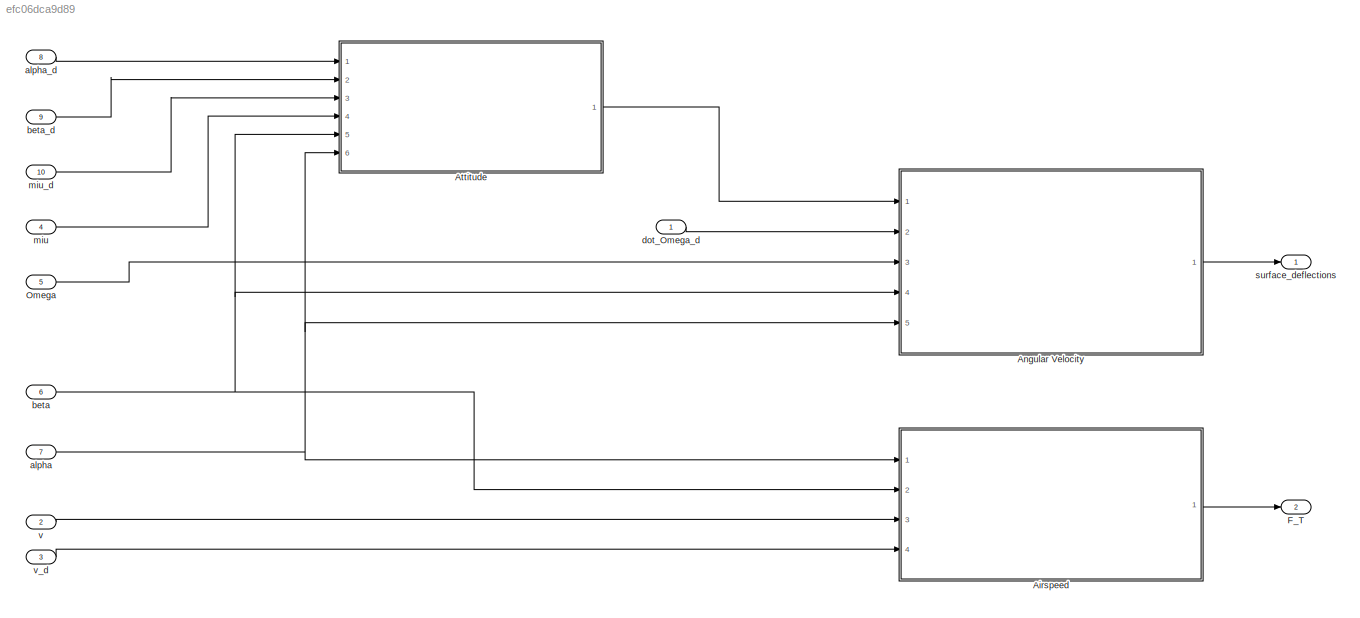
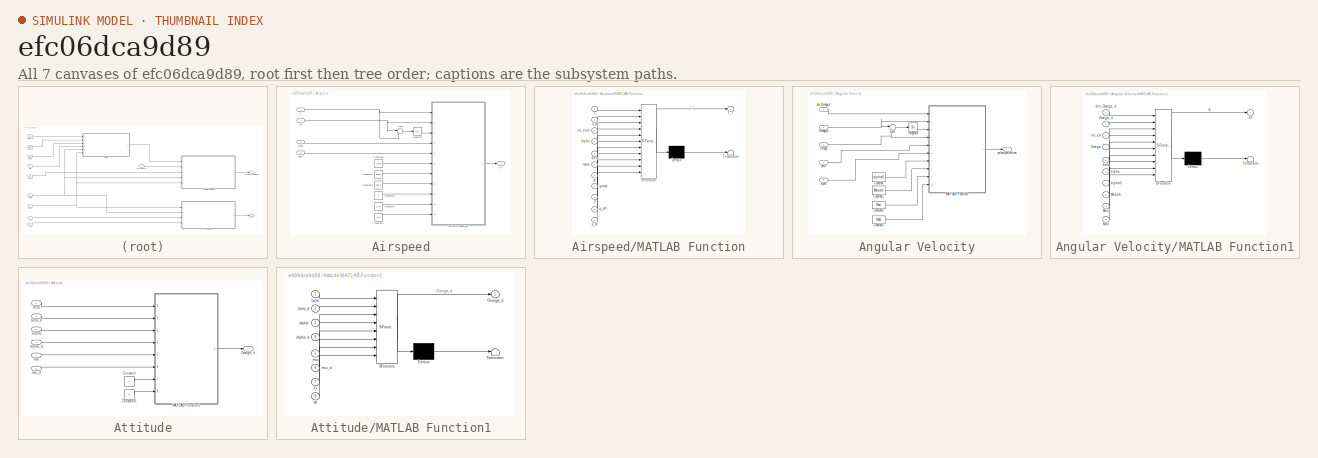
[diagram: thumbnail index - all 7 canvases of the model, root first then tree order]
MODEL slx_efc06dca9d89
KIND model
CONFIG AbsTol = auto
CONFIG EnableMultiTasking = off
CONFIG FixedStep = auto
CONFIG MaxStep = auto
CONFIG MinStep = auto
CONFIG RelTol = 1e-3
CONFIG SampleTimeConstraint = Unconstrained
CONFIG SolverName = VariableStepAuto
CONFIG StartTime = 0.0
CONFIG StopTime = 10.0
BLOCK [SubSystem] Airspeed
  Ports = [4, 1]
  RequestExecContextInheritance = off
BLOCK [Constant] Airspeed/Constant2
  Value = mass
BLOCK [Constant] Airspeed/Constant3
  Value = gravity
BLOCK [Constant] Airspeed/Constant4
  Value = gama
BLOCK [Constant] Airspeed/Constant5
  Value = D
BLOCK [Constant] Airspeed/Constant6
  Value = k_VP
BLOCK [Constant] Airspeed/Constant7
  Value = k_VI
BLOCK [Outport] Airspeed/F_T 
  VectorParamsAs1DForOutWhenUnconnected = off
BLOCK [Integrator] Airspeed/Integrator
  Ports = [1, 1]
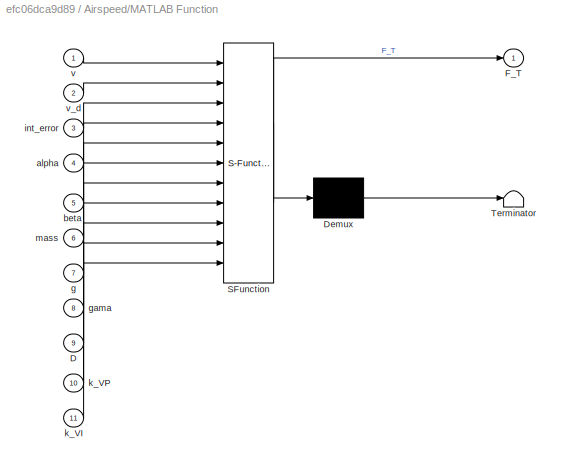
BLOCK [SubSystem] Airspeed/MATLAB Function
  ErrorFcn = Stateflow.Translate.translate
  PermitHierarchicalResolution = ExplicitOnly
  Ports = [11, 1]
  RequestExecContextInheritance = off
  SFBlockType = MATLAB Function
  TreatAsAtomicUnit = on
BLOCK [Demux] Airspeed/MATLAB Function/ Demux 
  Outputs = 1
  Ports = [1, 1]
BLOCK [S-Function] Airspeed/MATLAB Function/ SFunction 
  EnableBusSupport = off
  FunctionName = sf_sfun
  PortCounts = [11 2]
  Ports = [11, 2]
  SFcnIsStateOwnerBlock = off
  SFunctionDeploymentMode = off
  Tag = Stateflow S-Function 3
BLOCK [Terminator] Airspeed/MATLAB Function/ Terminator 
BLOCK [Inport] Airspeed/MATLAB Function/D
  Port = 9
BLOCK [Outport] Airspeed/MATLAB Function/F_T
  VectorParamsAs1DForOutWhenUnconnected = off
BLOCK [Inport] Airspeed/MATLAB Function/alpha
  Port = 4
BLOCK [Inport] Airspeed/MATLAB Function/beta
  Port = 5
BLOCK [Inport] Airspeed/MATLAB Function/g
  Port = 7
BLOCK [Inport] Airspeed/MATLAB Function/gama
  Port = 8
BLOCK [Inport] Airspeed/MATLAB Function/int_error
  Port = 3
BLOCK [Inport] Airspeed/MATLAB Function/k_VI
  Port = 11
BLOCK [Inport] Airspeed/MATLAB Function/k_VP
  Port = 10
BLOCK [Inport] Airspeed/MATLAB Function/mass
  Port = 6
BLOCK [Inport] Airspeed/MATLAB Function/v
BLOCK [Inport] Airspeed/MATLAB Function/v_d
  Port = 2
BLOCK [Sum] Airspeed/Sum
  Inputs = |-+
  Ports = [2, 1]
BLOCK [Inport] Airspeed/alpha
BLOCK [Inport] Airspeed/beta
  Port = 2
BLOCK [Inport] Airspeed/v 
  Port = 3
BLOCK [Inport] Airspeed/v_d
  Port = 4
BLOCK [SubSystem] Angular Velocity
  Ports = [5, 1]
  RequestExecContextInheritance = off
BLOCK [Constant] Angular Velocity/Constant
  Value = alpha0
BLOCK [Constant] Angular Velocity/Constant1
  Value = Maabb
BLOCK [Constant] Angular Velocity/Constant2
  Value = Moo
BLOCK [Constant] Angular Velocity/Constant3
  Value = Mdd
BLOCK [Integrator] Angular Velocity/Integrator
  Ports = [1, 1]
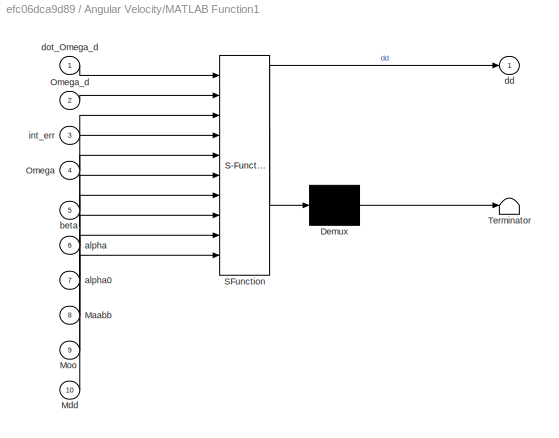
BLOCK [SubSystem] Angular Velocity/MATLAB Function1
  ErrorFcn = Stateflow.Translate.translate
  PermitHierarchicalResolution = ExplicitOnly
  Ports = [10, 1]
  RequestExecContextInheritance = off
  SFBlockType = MATLAB Function
  TreatAsAtomicUnit = on
BLOCK [Demux] Angular Velocity/MATLAB Function1/ Demux 
  Outputs = 1
  Ports = [1, 1]
BLOCK [S-Function] Angular Velocity/MATLAB Function1/ SFunction 
  EnableBusSupport = off
  FunctionName = sf_sfun
  PortCounts = [10 2]
  Ports = [10, 2]
  SFcnIsStateOwnerBlock = off
  SFunctionDeploymentMode = off
  Tag = Stateflow S-Function 1
BLOCK [Terminator] Angular Velocity/MATLAB Function1/ Terminator 
BLOCK [Inport] Angular Velocity/MATLAB Function1/Maabb
  Port = 8
BLOCK [Inport] Angular Velocity/MATLAB Function1/Mdd
  Port = 10
BLOCK [Inport] Angular Velocity/MATLAB Function1/Moo
  Port = 9
BLOCK [Inport] Angular Velocity/MATLAB Function1/Omega
  Port = 4
BLOCK [Inport] Angular Velocity/MATLAB Function1/Omega_d
  Port = 2
BLOCK [Inport] Angular Velocity/MATLAB Function1/alpha
  Port = 6
BLOCK [Inport] Angular Velocity/MATLAB Function1/alpha0
  Port = 7
BLOCK [Inport] Angular Velocity/MATLAB Function1/beta
  Port = 5
BLOCK [Outport] Angular Velocity/MATLAB Function1/dd
  VectorParamsAs1DForOutWhenUnconnected = off
BLOCK [Inport] Angular Velocity/MATLAB Function1/dot_Omega_d
BLOCK [Inport] Angular Velocity/MATLAB Function1/int_err
  Port = 3
BLOCK [Inport] Angular Velocity/Omega
  Port = 3
BLOCK [Inport] Angular Velocity/Omega_d
BLOCK [Sum] Angular Velocity/Sum
  Inputs = |-+
  Ports = [2, 1]
BLOCK [Inport] Angular Velocity/alpha
  Port = 5
BLOCK [Inport] Angular Velocity/beta
  Port = 4
BLOCK [Inport] Angular Velocity/dot_Omega_d
  Port = 2
BLOCK [Outport] Angular Velocity/surface_deflections
  VectorParamsAs1DForOutWhenUnconnected = off
BLOCK [SubSystem] Attitude
  Ports = [6, 1]
  RequestExecContextInheritance = off
BLOCK [Constant] Attitude/Constant
  Value = G
BLOCK [Constant] Attitude/Constant1
  Value = w
BLOCK [SubSystem] Attitude/MATLAB Function1
  ErrorFcn = Stateflow.Translate.translate
  PermitHierarchicalResolution = ExplicitOnly
  Ports = [8, 1]
  RequestExecContextInheritance = off
  SFBlockType = MATLAB Function
  TreatAsAtomicUnit = on
BLOCK [Demux] Attitude/MATLAB Function1/ Demux 
  Outputs = 1
  Ports = [1, 1]
BLOCK [S-Function] Attitude/MATLAB Function1/ SFunction 
  EnableBusSupport = off
  FunctionName = sf_sfun
  PortCounts = [8 2]
  Ports = [8, 2]
  SFcnIsStateOwnerBlock = off
  SFunctionDeploymentMode = off
  Tag = Stateflow S-Function 5
BLOCK [Terminator] Attitude/MATLAB Function1/ Terminator 
BLOCK [Inport] Attitude/MATLAB Function1/G
  Port = 7
BLOCK [Outport] Attitude/MATLAB Function1/Omega_d
  VectorParamsAs1DForOutWhenUnconnected = off
BLOCK [Inport] Attitude/MATLAB Function1/W
  Port = 8
BLOCK [Inport] Attitude/MATLAB Function1/alpha
  Port = 3
BLOCK [Inport] Attitude/MATLAB Function1/alpha_d
  Port = 4
BLOCK [Inport] Attitude/MATLAB Function1/beta
BLOCK [Inport] Attitude/MATLAB Function1/beta_d
  Port = 2
BLOCK [Inport] Attitude/MATLAB Function1/miu
  Port = 5
BLOCK [Inport] Attitude/MATLAB Function1/miu_d
  Port = 6
BLOCK [Outport] Attitude/Omega_d
  VectorParamsAs1DForOutWhenUnconnected = off
BLOCK [Inport] Attitude/alpha
  Port = 6
BLOCK [Inport] Attitude/alpha_d
BLOCK [Inport] Attitude/beta
  Port = 5
BLOCK [Inport] Attitude/beta_d
  Port = 2
BLOCK [Inport] Attitude/miu
  Port = 4
BLOCK [Inport] Attitude/miu_d
  Port = 3
BLOCK [Outport] F_T 
  Port = 2
  VectorParamsAs1DForOutWhenUnconnected = off
BLOCK [Inport] Omega 
  Port = 5
BLOCK [Inport] alpha
  Port = 7
BLOCK [Inport] alpha_d
  Port = 8
BLOCK [Inport] beta
  Port = 6
BLOCK [Inport] beta_d
  Port = 9
BLOCK [Inport] dot_Omega_d
BLOCK [Inport] miu
  Port = 4
BLOCK [Inport] miu_d
  Port = 10
BLOCK [Outport] surface_deflections
  VectorParamsAs1DForOutWhenUnconnected = off
BLOCK [Inport] v 
  Port = 2
BLOCK [Inport] v_d
  Port = 3
LINE Airspeed/Constant2:1 -> Airspeed/MATLAB Function:6
LINE Airspeed/Constant3:1 -> Airspeed/MATLAB Function:7
LINE Airspeed/Constant4:1 -> Airspeed/MATLAB Function:8
LINE Airspeed/Constant5:1 -> Airspeed/MATLAB Function:9
LINE Airspeed/Constant6:1 -> Airspeed/MATLAB Function:10
LINE Airspeed/Constant7:1 -> Airspeed/MATLAB Function:11
LINE Airspeed/Integrator:1 -> Airspeed/MATLAB Function:3
LINE Airspeed/MATLAB Function:1 -> Airspeed/F_T :1
LINE Airspeed/Sum:1 -> Airspeed/Integrator:1
LINE Airspeed/alpha:1 -> Airspeed/MATLAB Function:4
LINE Airspeed/beta:1 -> Airspeed/MATLAB Function:5
NET Airspeed/v :1 -> Airspeed/MATLAB Function:1, Airspeed/Sum:2
NET Airspeed/v_d:1 -> Airspeed/MATLAB Function:2, Airspeed/Sum:1
LINE Airspeed:1 -> F_T :1
LINE Angular Velocity/Constant1:1 -> Angular Velocity/MATLAB Function1:8
LINE Angular Velocity/Constant2:1 -> Angular Velocity/MATLAB Function1:9
LINE Angular Velocity/Constant3:1 -> Angular Velocity/MATLAB Function1:10
LINE Angular Velocity/Constant:1 -> Angular Velocity/MATLAB Function1:7
LINE Angular Velocity/Integrator:1 -> Angular Velocity/MATLAB Function1:3
LINE Angular Velocity/MATLAB Function1:1 -> Angular Velocity/surface_deflections:1
NET Angular Velocity/Omega:1 -> Angular Velocity/MATLAB Function1:4, Angular Velocity/Sum:2
NET Angular Velocity/Omega_d:1 -> Angular Velocity/MATLAB Function1:2, Angular Velocity/Sum:1
LINE Angular Velocity/Sum:1 -> Angular Velocity/Integrator:1
LINE Angular Velocity/alpha:1 -> Angular Velocity/MATLAB Function1:6
LINE Angular Velocity/beta:1 -> Angular Velocity/MATLAB Function1:5
LINE Angular Velocity/dot_Omega_d:1 -> Angular Velocity/MATLAB Function1:1
LINE Angular Velocity:1 -> surface_deflections:1
LINE Attitude/Constant1:1 -> Attitude/MATLAB Function1:8
LINE Attitude/Constant:1 -> Attitude/MATLAB Function1:7
LINE Attitude/MATLAB Function1:1 -> Attitude/Omega_d:1
LINE Attitude/alpha:1 -> Attitude/MATLAB Function1:3
LINE Attitude/alpha_d:1 -> Attitude/MATLAB Function1:4
LINE Attitude/beta:1 -> Attitude/MATLAB Function1:1
LINE Attitude/beta_d:1 -> Attitude/MATLAB Function1:2
LINE Attitude/miu:1 -> Attitude/MATLAB Function1:5
LINE Attitude/miu_d:1 -> Attitude/MATLAB Function1:6
LINE Attitude:1 -> Angular Velocity:1
LINE Omega :1 -> Angular Velocity:3
NET alpha:1 -> Airspeed:1, Angular Velocity:5, Attitude:6
LINE alpha_d:1 -> Attitude:1
NET beta:1 -> Airspeed:2, Angular Velocity:4, Attitude:5
LINE beta_d:1 -> Attitude:2
LINE dot_Omega_d:1 -> Angular Velocity:2
LINE miu:1 -> Attitude:4
LINE miu_d:1 -> Attitude:3
LINE v :1 -> Airspeed:3
LINE v_d:1 -> Airspeed:4
note: NET lines group one-source signal fan-out (src -> all destinations, sorted); 1:1 wires keep LINE
CHART Angular Velocity/MATLAB Function1 states=1 transitions=1
  STATE_LABEL 'eML_blk_kernel()'
  STATE_LABEL 'SCRIPT:\nfunction dd = controller(dot_Omega_d,Omega_d,int_err,Omega,beta,alpha,alpha0,Maabb,Moo,Mdd)\n% Equation 48 [1]\n\n    % gains\n    kp = 1;\n    ki = 1;\n    \n    % auxiliary calculations\n    Soo = skew(Omega);\n    \n    % control law\n    dd = Mdd\\(Soo*Omega-...\n        Maabb*[beta;alpha-alpha0]-...\n        Moo*Omega-...\n        kp*(Omega-Omega_d)-...\n        ki*int_err+dot_Omega_d);\nend\n\nfunction...<+415ch>'
CHART Airspeed/MATLAB Function states=1 transitions=1
  STATE_LABEL 'eML_blk_kernel()'
  STATE_LABEL 'SCRIPT:\nfunction F_T = airspeedController(v,v_d,int_error,alpha,beta,mass,g,gama,D,k_VP,k_VI)\n% Equation 47 [1]\n\nF_T = [(D + mass*g*sin(gama)/(cos(beta)*cos(alpha))] + ...\n      [(k_VP*(v-v_d) + k_VI*int_error)/(cos(beta)*cos(alpha))];\n\nend\n\n% [1] Serra, Pedro & Cunha, Rita & Hamel, T. & Silvestre, Carlos & Le Bras, Florent. (2015). Nonlinear Image-Based Visual Servo Controller for the Flare Maneu...<+137ch>'
CHART Attitude/MATLAB Function1 states=1 transitions=1
  STATE_LABEL 'eML_blk_kernel()'
  STATE_LABEL 'SCRIPT:\nfunction Omega_d = controller(beta,beta_d,alpha,alpha_d,miu,miu_d, G, W)\n    % gains\n    Kp = 1;\n    \n    % control law\n    Omega_d = inv(G)*(-W-Kp*[beta-beta_d;alpha-alpha_d;miu-miu_d]);\nend\n'
CHART  states=0 transitions=0
CHART  states=0 transitions=0
CHART  states=0 transitions=0
